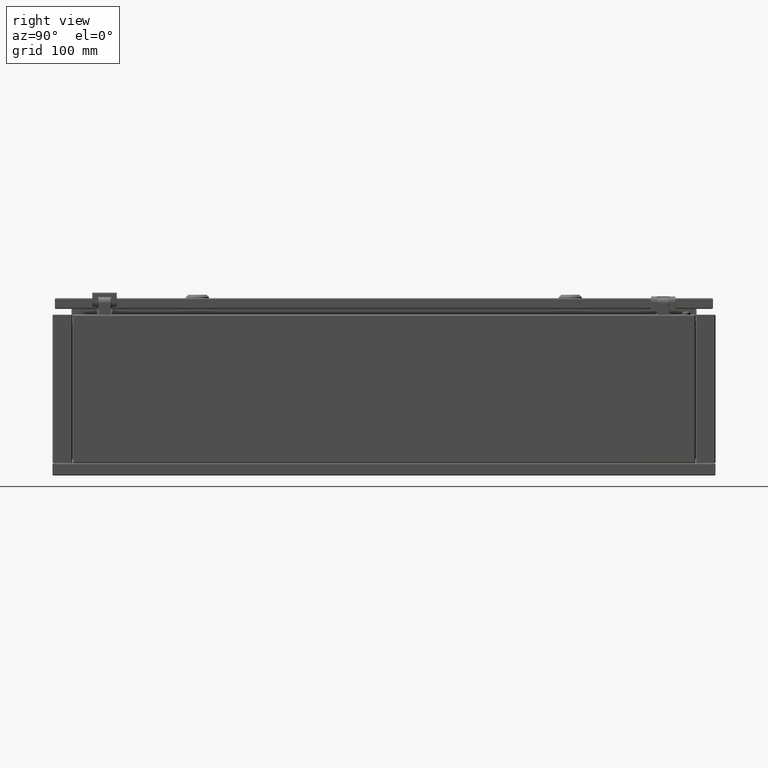
[diagram: clean part render]
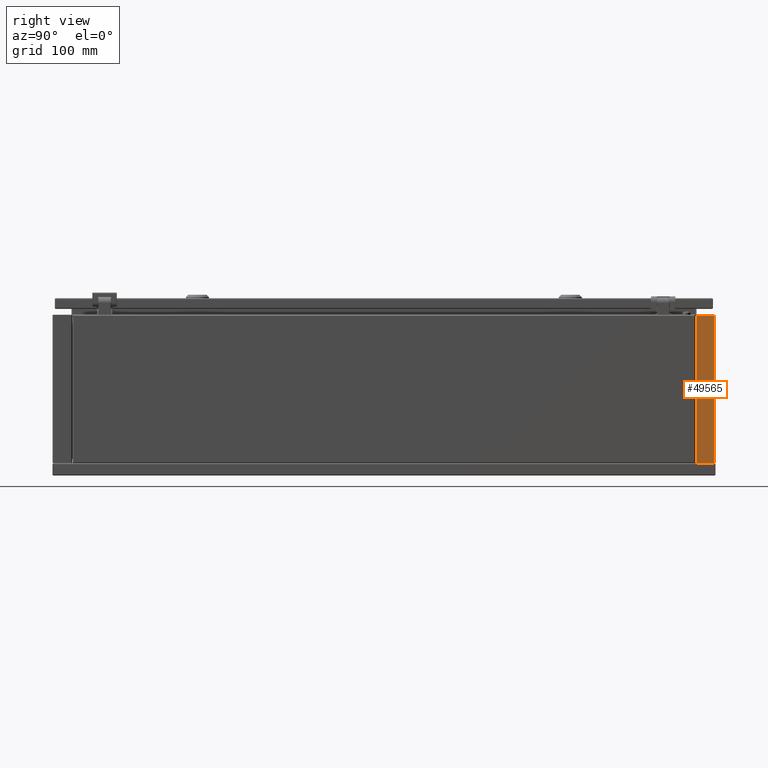
[diagram: same view with one face highlighted and labeled with its STEP entity id]
A machine part, right view. The second image highlights one B-rep face of the part: STEP entity #49565.
In plain terms, the highlighted planar face has unit normal (-1, -0, 0).
Its self-contained STEP definition (entity closure, byte-faithful):
#925 = EDGE_CURVE ( 'NONE', #57349, #51720, #53077, .T. ) ;
#2700 = CARTESIAN_POINT ( 'NONE',  ( 150.0000000000000000, 377.5999999999999700, 13.99999999999563900 ) ) ;
#2917 = ORIENTED_EDGE ( 'NONE', *, *, #925, .F. ) ;
#3619 = LINE ( 'NONE', #19856, #74117 ) ;
#3894 = CARTESIAN_POINT ( 'NONE',  ( 150.0000000000000000, 398.5000000000000000, 15.49999999999550000 ) ) ;
#12030 = CARTESIAN_POINT ( 'NONE',  ( 150.0000000000000000, 399.0000000000000000, 15.49999999999550000 ) ) ;
#14698 = EDGE_CURVE ( 'NONE', #51720, #85857, #3619, .T. ) ;
#19300 = CARTESIAN_POINT ( 'NONE',  ( 150.0000000000000000, 377.5999999999999700, 191.8999999999960300 ) ) ;
#19856 = CARTESIAN_POINT ( 'NONE',  ( 150.0000000000000000, 398.5000000000000000, 13.99999999999546000 ) ) ;
#21214 = LINE ( 'NONE', #37255, #73574 ) ;
#21613 = CARTESIAN_POINT ( 'NONE',  ( 150.0000000000000000, 398.5000000000000000, 13.99999999999546000 ) ) ;
#24079 = DIRECTION ( 'NONE',  ( 9.415632010757280800E-016, -1.000000000000000000, 1.646035625398189900E-014 ) ) ;
#30715 = AXIS2_PLACEMENT_3D ( 'NONE', #12030, #87298, #87586 ) ;
#31104 = EDGE_CURVE ( 'NONE', #34991, #85857, #51750, .T. ) ;
#32035 = PLANE ( 'NONE',  #30715 ) ;
#34916 = EDGE_CURVE ( 'NONE', #57349, #34991, #21214, .T. ) ;
#34991 = VERTEX_POINT ( 'NONE', #19300 ) ;
#36822 = CARTESIAN_POINT ( 'NONE',  ( 150.0000000000000000, 377.5999999999999700, 191.8999999999960300 ) ) ;
#37255 = CARTESIAN_POINT ( 'NONE',  ( 150.0000000000000000, 398.5000000000000000, 191.8999999999955200 ) ) ;
#39987 = VECTOR ( 'NONE', #51754, 1000.000000000000000 ) ;
#40218 = ORIENTED_EDGE ( 'NONE', *, *, #31104, .T. ) ;
#43314 = FACE_OUTER_BOUND ( 'NONE', #67189, .T. ) ;
#47327 = ORIENTED_EDGE ( 'NONE', *, *, #14698, .F. ) ;
#49565 = ADVANCED_FACE ( 'NONE', ( #43314 ), #32035, .F. ) ;
#51720 = VERTEX_POINT ( 'NONE', #21613 ) ;
#51750 = LINE ( 'NONE', #36822, #39987 ) ;
#51754 = DIRECTION ( 'NONE',  ( -5.233082485863329900E-016, -1.296574032302414000E-014, -1.000000000000000000 ) ) ;
#53077 = LINE ( 'NONE', #3894, #77629 ) ;
#54194 = DIRECTION ( 'NONE',  ( -3.001484642838905300E-015, -1.000000000000000000, 9.567928157466901000E-015 ) ) ;
#55079 = ORIENTED_EDGE ( 'NONE', *, *, #34916, .T. ) ;
#57349 = VERTEX_POINT ( 'NONE', #65071 ) ;
#64226 = DIRECTION ( 'NONE',  ( -5.233082485863329900E-016, -1.296574032302414000E-014, -1.000000000000000000 ) ) ;
#65071 = CARTESIAN_POINT ( 'NONE',  ( 150.0000000000000000, 398.5000000000000000, 191.8999999999955200 ) ) ;
#67189 = EDGE_LOOP ( 'NONE', ( #40218, #47327, #2917, #55079 ) ) ;
#73574 = VECTOR ( 'NONE', #24079, 1000.000000000000000 ) ;
#74117 = VECTOR ( 'NONE', #54194, 1000.000000000000000 ) ;
#77629 = VECTOR ( 'NONE', #64226, 1000.000000000000000 ) ;
#85857 = VERTEX_POINT ( 'NONE', #2700 ) ;
#87298 = DIRECTION ( 'NONE',  ( -1.000000000000000000, -1.900759490769908000E-015, 5.233082485863580400E-016 ) ) ;
#87586 = DIRECTION ( 'NONE',  ( 1.900759490769914700E-015, -1.000000000000000000, 1.296574032302414000E-014 ) ) ;